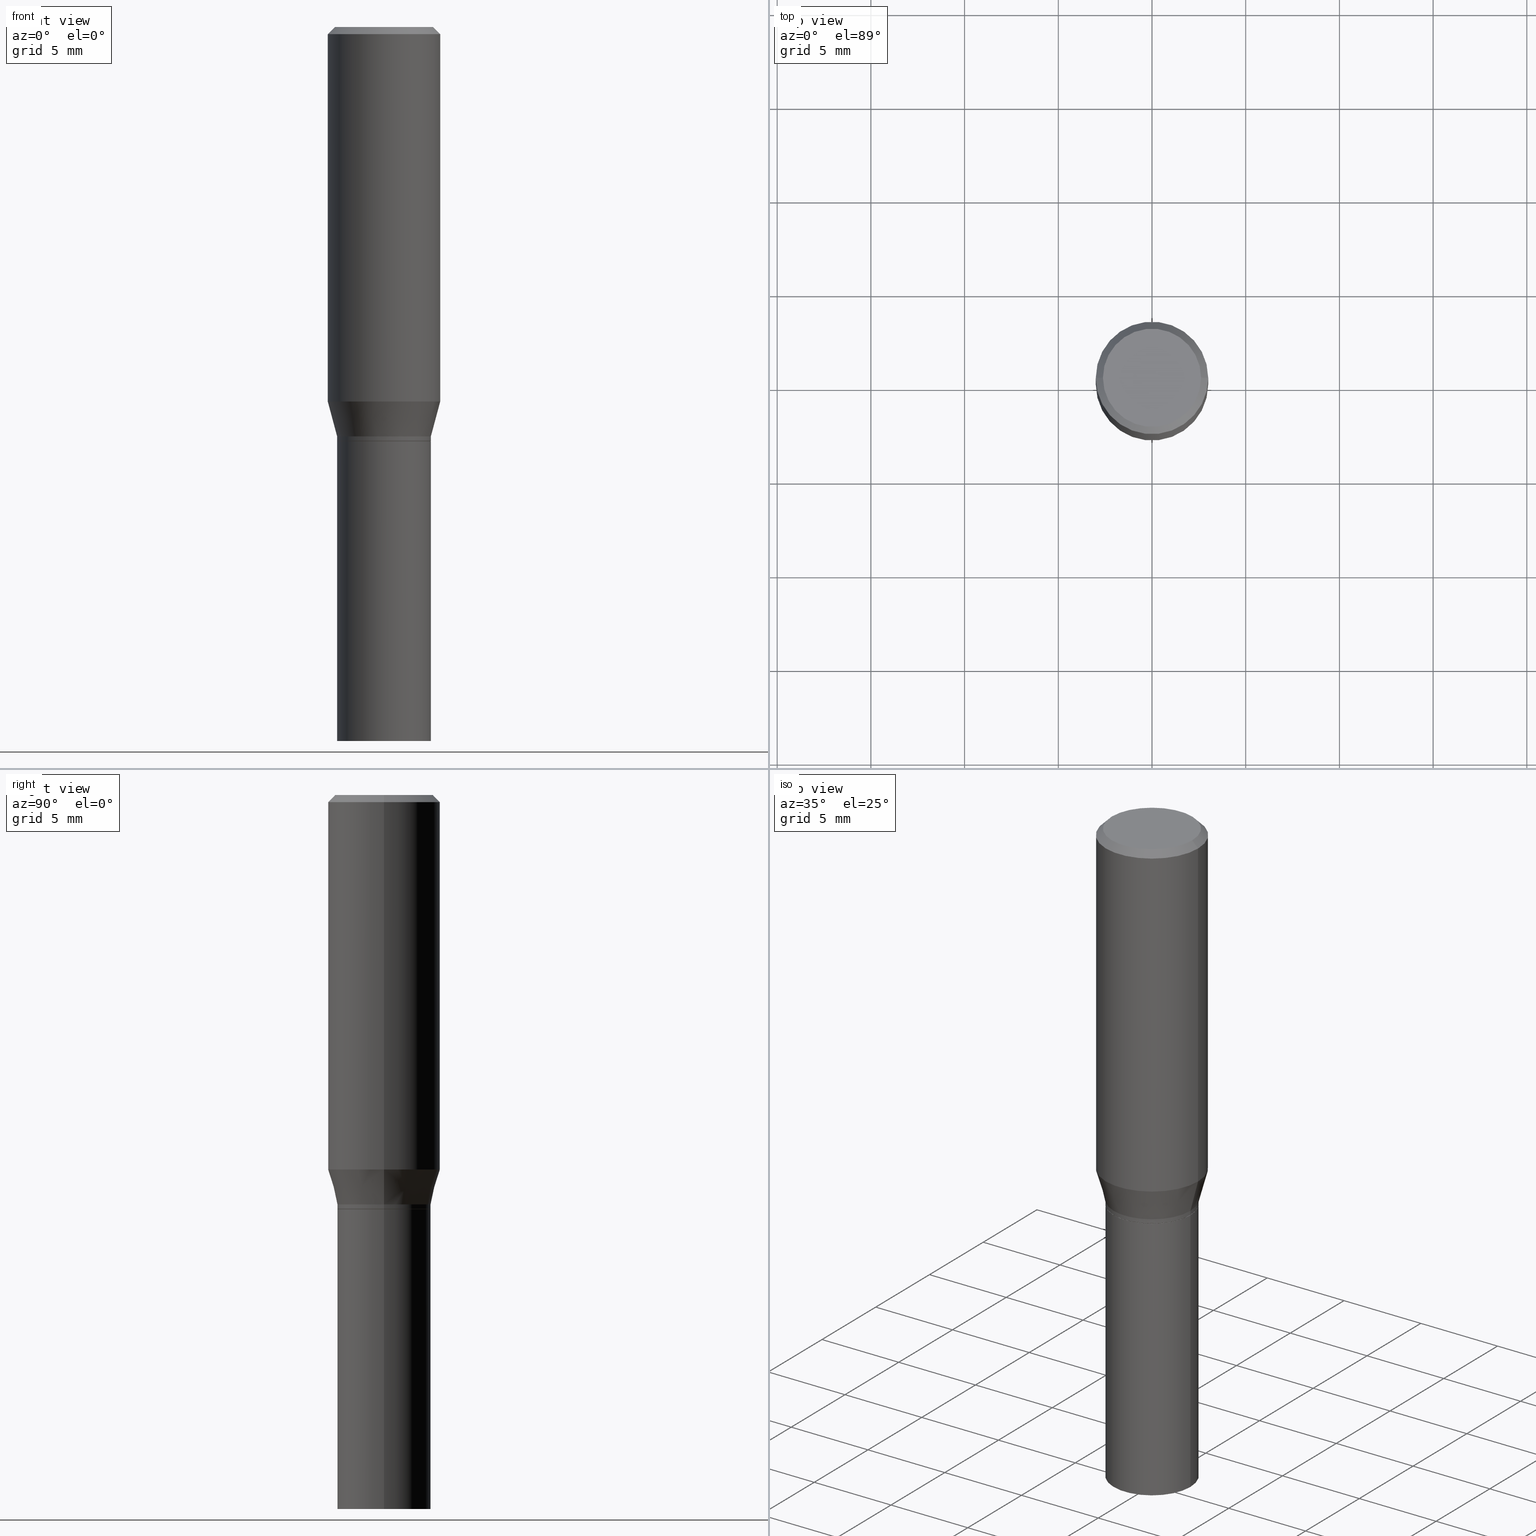
[diagram: canonical four-view strip — front | top / right | iso, engineering-drawing reading convention]
A machine part, canonical four-view strip (front | top / right | iso — engineering-drawing reading convention). The complete STEP part file that produces these views, byte-faithful:
ISO-10303-21;
HEADER;
FILE_DESCRIPTION (( 'STEP AP203' ),
    '1' );
FILE_NAME ('40537.STEP',
    '2024-03-12T19:14:04',
    ( '' ),
    ( '' ),
    'SwSTEP 2.0',
    'SolidWorks 2023',
    '' );
FILE_SCHEMA (( 'CONFIG_CONTROL_DESIGN' ));
ENDSEC;

DATA;
#1 = VERTEX_POINT ( 'NONE', #135 ) ;
#2 = VERTEX_POINT ( 'NONE', #284 ) ;
#3 = AXIS2_PLACEMENT_3D ( 'NONE', #43, #74, #222 ) ;
#4 = LINE ( 'NONE', #142, #16 ) ;
#5 = VERTEX_POINT ( 'NONE', #426 ) ;
#6 = FACE_OUTER_BOUND ( 'NONE', #102, .T. ) ;
#7 = PERSON_AND_ORGANIZATION ( #271, #303 ) ;
#8 = CARTESIAN_POINT ( 'NONE',  ( 3.668203209277705088E-31, -5.237222008264718399E-17, -0.01499999999999999944 ) ) ;
#9 = AXIS2_PLACEMENT_3D ( 'NONE', #419, #382, #313 ) ;
#10 = CIRCLE ( 'NONE', #105, 0.09794999999999999540 ) ;
#11 = DIRECTION ( 'NONE',  ( -2.445468806185136597E-29, 3.491481338843145583E-15, 1.000000000000000000 ) ) ;
#12 = DIRECTION ( 'NONE',  ( -2.445468806185136597E-29, 3.491481338843145583E-15, 1.000000000000000000 ) ) ;
#13 = ORIENTED_EDGE ( 'NONE', *, *, #247, .T. ) ;
#14 = CARTESIAN_POINT ( 'NONE',  ( -0.09844999999999999585, -3.438050637240251581E-15, -1.500000000000000222 ) ) ;
#15 = VERTEX_POINT ( 'NONE', #115 ) ;
#16 = VECTOR ( 'NONE', #295, 39.37007874015748854 ) ;
#17 = FACE_OUTER_BOUND ( 'NONE', #118, .T. ) ;
#18 = LOCAL_TIME ( 15, 14, 4.000000000000000000, #444 ) ;
#19 = DIRECTION ( 'NONE',  ( 1.000000000000000000, -6.982962677686265133E-15, 0.000000000000000000 ) ) ;
#20 = CARTESIAN_POINT ( 'NONE',  ( 0.1031000000000000111, -7.849571885948552706E-16, -1.900413116462238423E-16 ) ) ;
#21 = EDGE_CURVE ( 'NONE', #366, #246, #64, .T. ) ;
#22 = MECHANICAL_CONTEXT ( 'NONE', #73, 'mechanical' ) ;
#23 = DIRECTION ( 'NONE',  ( 1.000000000000000000, -6.982962677686265133E-15, 0.000000000000000000 ) ) ;
#24 = VECTOR ( 'NONE', #139, 39.37007874015748143 ) ;
#25 = EDGE_CURVE ( 'NONE', #168, #5, #400, .T. ) ;
#26 = DIRECTION ( 'NONE',  ( -2.438088387897960049E-29, 3.491481338843145188E-15, 1.000000000000000000 ) ) ;
#27 = CYLINDRICAL_SURFACE ( 'NONE', #416, 0.09844999999999999585 ) ;
#28 = DIRECTION ( 'NONE',  ( -2.438088387897960049E-29, 3.491481338843145188E-15, 1.000000000000000000 ) ) ;
#29 = APPROVAL_DATE_TIME ( #363, #281 ) ;
#30 = VECTOR ( 'NONE', #396, 39.37007874015748143 ) ;
#31 = APPROVAL_PERSON_ORGANIZATION ( #243, #281, #358 ) ;
#32 = DIRECTION ( 'NONE',  ( 1.000000000000000000, -6.982962677686267499E-15, 0.000000000000000000 ) ) ;
#33 = EDGE_LOOP ( 'NONE', ( #435, #183, #367, #395 ) ) ;
#34 = PERSON_AND_ORGANIZATION ( #271, #303 ) ;
#35 = ADVANCED_FACE ( 'NONE', ( #6 ), #152, .F. ) ;
#36 = PLANE ( 'NONE',  #302 ) ;
#37 = EDGE_LOOP ( 'NONE', ( #128, #173 ) ) ;
#38 = PLANE ( 'NONE',  #253 ) ;
#39 = AXIS2_PLACEMENT_3D ( 'NONE', #190, #12, #405 ) ;
#40 = EDGE_LOOP ( 'NONE', ( #287, #465 ) ) ;
#41 = CARTESIAN_POINT ( 'NONE',  ( 1.924009758381236534E-29, -2.746976019546752715E-15, -0.7867652016312725038 ) ) ;
#42 = COORDINATED_UNIVERSAL_TIME_OFFSET ( 5, 0, .BEHIND. ) ;
#43 = CARTESIAN_POINT ( 'NONE',  ( 2.126579673858595013E-29, -3.036192172257999703E-15, -0.8696000000000000396 ) ) ;
#44 = VECTOR ( 'NONE', #427, 39.37007874015748854 ) ;
#45 = LOCAL_TIME ( 15, 14, 4.000000000000000000, #111 ) ;
#46 = CARTESIAN_POINT ( 'NONE',  ( 7.199434520694541042E-16, 0.1031000000000000111, -4.549923818578428559E-16 ) ) ;
#47 = ADVANCED_FACE ( 'NONE', ( #194 ), #375, .T. ) ;
#48 = APPROVAL_ROLE ( '' ) ;
#49 = DIRECTION ( 'NONE',  ( -2.445468806185136597E-29, 3.491481338843145583E-15, 1.000000000000000000 ) ) ;
#50 = AXIS2_PLACEMENT_3D ( 'NONE', #379, #408, #83 ) ;
#51 = DIRECTION ( 'NONE',  ( -2.445468806185136597E-29, 3.491481338843145583E-15, 1.000000000000000000 ) ) ;
#52 = DIRECTION ( 'NONE',  ( 1.000000000000000000, 0.000000000000000000, 0.000000000000000000 ) ) ;
#53 = LINE ( 'NONE', #202, #359 ) ;
#54 = DIRECTION ( 'NONE',  ( 1.000000000000000000, -6.982962677686266711E-15, 4.876176775795936353E-29 ) ) ;
#55 = VERTEX_POINT ( 'NONE', #14 ) ;
#56 = DIRECTION ( 'NONE',  ( -2.445468806185136877E-29, 3.491481338843145188E-15, 1.000000000000000000 ) ) ;
#57 = ORIENTED_EDGE ( 'NONE', *, *, #289, .F. ) ;
#58 = CARTESIAN_POINT ( 'NONE',  ( 0.09845000000000005136, -6.874726756182133489E-16, 4.800596035771100615E-30 ) ) ;
#59 = CARTESIAN_POINT ( 'NONE',  ( 4.647400995173613138E-45, -6.635256932220833331E-31, -1.900413116462290932E-16 ) ) ;
#60 = ORIENTED_EDGE ( 'NONE', *, *, #270, .T. ) ;
#61 = CARTESIAN_POINT ( 'NONE',  ( 0.09794999999999999540, -3.721919107206791548E-15, -0.8701000000000002066 ) ) ;
#62 = DIRECTION ( 'NONE',  ( -2.445468806185136597E-29, 3.491481338843145583E-15, 1.000000000000000000 ) ) ;
#63 = ORIENTED_EDGE ( 'NONE', *, *, #72, .T. ) ;
#64 = CIRCLE ( 'NONE', #311, 0.1180999999999999966 ) ;
#65 = FACE_OUTER_BOUND ( 'NONE', #203, .T. ) ;
#66 = CARTESIAN_POINT ( 'NONE',  ( 0.09844999999999991258, -3.723664847876212263E-15, -0.8696000000000000396 ) ) ;
#67 = EDGE_LOOP ( 'NONE', ( #422, #109, #150, #428 ) ) ;
#68 = CARTESIAN_POINT ( 'NONE',  ( -0.1180999999999999966, -1.907825048614074518E-15, -0.7867652016312725038 ) ) ;
#69 = CARTESIAN_POINT ( 'NONE',  ( 2.103347720199836269E-29, -3.003023099538989951E-15, -0.8601000000000000867 ) ) ;
#70 = EDGE_CURVE ( 'NONE', #137, #2, #117, .T. ) ;
#71 = VECTOR ( 'NONE', #257, 39.37007874015748143 ) ;
#72 = EDGE_CURVE ( 'NONE', #15, #366, #338, .T. ) ;
#73 = APPLICATION_CONTEXT ( 'configuration controlled 3d designs of mechanical parts and assemblies' ) ;
#74 = DIRECTION ( 'NONE',  ( -2.445468806185136597E-29, 3.491481338843145583E-15, 1.000000000000000000 ) ) ;
#75 = EDGE_CURVE ( 'NONE', #2, #137, #336, .T. ) ;
#76 = ORIENTED_EDGE ( 'NONE', *, *, #247, .F. ) ;
#77 = DIRECTION ( 'NONE',  ( 1.000000000000000000, -6.982962677686266711E-15, 4.876176775795936353E-29 ) ) ;
#78 = APPROVAL ( #372, 'UNSPECIFIED' ) ;
#79 = VERTEX_POINT ( 'NONE', #304 ) ;
#80 = CARTESIAN_POINT ( 'NONE',  ( 2.127802408261687534E-29, -3.037937912927421601E-15, -0.8701000000000000956 ) ) ;
#81 = ADVANCED_FACE ( 'NONE', ( #378 ), #158, .F. ) ;
#82 = CONICAL_SURFACE ( 'NONE', #438, 0.09794999999999999540, 0.7853981633971921505 ) ;
#83 = DIRECTION ( 'NONE',  ( 1.000000000000000000, -6.982962677686266711E-15, 4.876176775795935232E-29 ) ) ;
#84 = DIRECTION ( 'NONE',  ( -2.445468806185136597E-29, 3.491481338843145583E-15, 1.000000000000000000 ) ) ;
#85 = CARTESIAN_POINT ( 'NONE',  ( 2.126579673858595013E-29, -3.036192172257999703E-15, -0.8696000000000000396 ) ) ;
#86 = FACE_OUTER_BOUND ( 'NONE', #182, .T. ) ;
#87 = DIRECTION ( 'NONE',  ( 1.000000000000000000, -6.982962677686269077E-15, 0.000000000000000000 ) ) ;
#88 = APPROVAL ( #340, 'UNSPECIFIED' ) ;
#89 = AXIS2_PLACEMENT_3D ( 'NONE', #431, #103, #254 ) ;
#90 = DIRECTION ( 'NONE',  ( -1.000000000000000000, 6.982962677686266711E-15, 0.000000000000000000 ) ) ;
#91 = ORIENTED_EDGE ( 'NONE', *, *, #164, .T. ) ;
#92 = ADVANCED_FACE ( 'NONE', ( #341 ), #116, .T. ) ;
#93 = APPROVAL_DATE_TIME ( #130, #88 ) ;
#94 = CARTESIAN_POINT ( 'NONE',  ( 2.127802408261687534E-29, -3.037937912927421601E-15, -0.8701000000000000956 ) ) ;
#95 = CONICAL_SURFACE ( 'NONE', #104, 0.1180999999999999966, 0.7853981633974543852 ) ;
#96 = CARTESIAN_POINT ( 'NONE',  ( 3.668203209277704895E-29, -5.237222008264718177E-15, -1.500000000000000222 ) ) ;
#97 = APPLICATION_PROTOCOL_DEFINITION ( 'international standard', 'config_control_design', 1994, #368 ) ;
#98 = LINE ( 'NONE', #176, #24 ) ;
#99 = ADVANCED_FACE ( 'NONE', ( #225 ), #443, .T. ) ;
#100 = EDGE_LOOP ( 'NONE', ( #108, #328, #13, #206 ) ) ;
#101 = CYLINDRICAL_SURFACE ( 'NONE', #308, 0.09844999999999999585 ) ;
#102 = EDGE_LOOP ( 'NONE', ( #143, #133 ) ) ;
#103 = DIRECTION ( 'NONE',  ( 2.445468806185136597E-29, -3.491481338843145583E-15, -1.000000000000000000 ) ) ;
#104 = AXIS2_PLACEMENT_3D ( 'NONE', #273, #165, #90 ) ;
#105 = AXIS2_PLACEMENT_3D ( 'NONE', #459, #414, #269 ) ;
#106 = LINE ( 'NONE', #325, #30 ) ;
#107 = ORIENTED_EDGE ( 'NONE', *, *, #388, .T. ) ;
#108 = ORIENTED_EDGE ( 'NONE', *, *, #233, .F. ) ;
#109 = ORIENTED_EDGE ( 'NONE', *, *, #417, .T. ) ;
#110 = DIRECTION ( 'NONE',  ( 1.000000000000000000, -6.982962677686267499E-15, 0.000000000000000000 ) ) ;
#111 = COORDINATED_UNIVERSAL_TIME_OFFSET ( 5, 0, .BEHIND. ) ;
#112 = CONICAL_SURFACE ( 'NONE', #89, 0.1180999999999999966, 0.7853981633974543852 ) ;
#113 = VECTOR ( 'NONE', #250, 39.37007874015748143 ) ;
#114 = CARTESIAN_POINT ( 'NONE',  ( 6.874726756182340565E-16, 0.09844999999999695661, -0.8701000000000005397 ) ) ;
#115 = CARTESIAN_POINT ( 'NONE',  ( 0.1180999999999999966, -3.571663911781501372E-15, -0.7867652016312725038 ) ) ;
#116 = CYLINDRICAL_SURFACE ( 'NONE', #50, 0.09845000000000005136 ) ;
#117 = CIRCLE ( 'NONE', #39, 0.09844999999999999585 ) ;
#118 = EDGE_LOOP ( 'NONE', ( #399, #146, #334, #76 ) ) ;
#119 = DATE_AND_TIME ( #174, #18 ) ;
#120 = DIRECTION ( 'NONE',  ( 1.000000000000000000, -6.982962677686266711E-15, 4.876176775795936353E-29 ) ) ;
#121 = CARTESIAN_POINT ( 'NONE',  ( 0.000000000000000000, 0.000000000000000000, 0.000000000000000000 ) ) ;
#122 = FACE_OUTER_BOUND ( 'NONE', #321, .T. ) ;
#123 = AXIS2_PLACEMENT_3D ( 'NONE', #410, #227, #151 ) ;
#124 = AXIS2_PLACEMENT_3D ( 'NONE', #121, #381, #52 ) ;
#125 = ADVANCED_FACE ( 'NONE', ( #86 ), #392, .T. ) ;
#126 = EDGE_CURVE ( 'NONE', #246, #366, #384, .T. ) ;
#127 = CARTESIAN_POINT ( 'NONE',  ( 3.668203209277705088E-31, -5.237222008264718399E-17, -0.01499999999999999944 ) ) ;
#128 = ORIENTED_EDGE ( 'NONE', *, *, #159, .T. ) ;
#129 = CIRCLE ( 'NONE', #407, 0.09844999999999999585 ) ;
#130 = DATE_AND_TIME ( #451, #312 ) ;
#131 = LINE ( 'NONE', #283, #132 ) ;
#132 = VECTOR ( 'NONE', #56, 39.37007874015748143 ) ;
#133 = ORIENTED_EDGE ( 'NONE', *, *, #75, .T. ) ;
#134 = CONICAL_SURFACE ( 'NONE', #276, 0.09794999999999999540, 0.7853981633971921505 ) ;
#135 = CARTESIAN_POINT ( 'NONE',  ( -0.09794999999999999540, -2.339312076076292793E-15, -0.8701000000000002066 ) ) ;
#136 = CARTESIAN_POINT ( 'NONE',  ( 0.09794999999999999540, -3.721919107206791548E-15, -0.8701000000000002066 ) ) ;
#137 = VERTEX_POINT ( 'NONE', #350 ) ;
#138 =( NAMED_UNIT ( * ) PLANE_ANGLE_UNIT ( ) SI_UNIT ( $, .RADIAN. ) );
#139 = DIRECTION ( 'NONE',  ( -2.445468806185136877E-29, 3.491481338843145188E-15, 1.000000000000000000 ) ) ;
#140 = DATE_TIME_ROLE ( 'classification_date' ) ;
#141 = ORIENTED_EDGE ( 'NONE', *, *, #159, .F. ) ;
#142 = CARTESIAN_POINT ( 'NONE',  ( -0.1180999999999999966, 7.723156721521009862E-16, -0.01499999999999999944 ) ) ;
#143 = ORIENTED_EDGE ( 'NONE', *, *, #70, .T. ) ;
#144 = CIRCLE ( 'NONE', #196, 0.09845000000000017626 ) ;
#145 = ORIENTED_EDGE ( 'NONE', *, *, #370, .F. ) ;
#146 = ORIENTED_EDGE ( 'NONE', *, *, #233, .T. ) ;
#147 = ADVANCED_FACE ( 'NONE', ( #17 ), #82, .T. ) ;
#148 = ORIENTED_EDGE ( 'NONE', *, *, #72, .F. ) ;
#149 = DATE_AND_TIME ( #333, #192 ) ;
#150 = ORIENTED_EDGE ( 'NONE', *, *, #374, .T. ) ;
#151 = DIRECTION ( 'NONE',  ( 1.000000000000000000, -6.982962677686266711E-15, 4.876176775795935232E-29 ) ) ;
#152 = PLANE ( 'NONE',  #294 ) ;
#153 = AXIS2_PLACEMENT_3D ( 'NONE', #69, #62, #288 ) ;
#154 = CIRCLE ( 'NONE', #442, 0.09844999999999999585 ) ;
#155 = ORIENTED_EDGE ( 'NONE', *, *, #189, .F. ) ;
#156 = PERSON_AND_ORGANIZATION ( #271, #303 ) ;
#157 = DIRECTION ( 'NONE',  ( 1.000000000000000000, -6.982962677686265922E-15, 0.000000000000000000 ) ) ;
#158 = PLANE ( 'NONE',  #223 ) ;
#159 = EDGE_CURVE ( 'NONE', #79, #461, #307, .T. ) ;
#160 = CARTESIAN_POINT ( 'NONE',  ( 0.1180999999999999966, -8.246878922347480654E-16, 5.758764772215000440E-30 ) ) ;
#161 =( NAMED_UNIT ( * ) SI_UNIT ( $, .STERADIAN. ) SOLID_ANGLE_UNIT ( ) );
#162 = ADVANCED_FACE ( 'NONE', ( #122 ), #95, .T. ) ;
#163 = ADVANCED_FACE ( 'NONE', ( #232 ), #230, .T. ) ;
#164 = EDGE_CURVE ( 'NONE', #259, #137, #53, .T. ) ;
#165 = DIRECTION ( 'NONE',  ( 2.445468806185136597E-29, -3.491481338843145583E-15, -1.000000000000000000 ) ) ;
#166 = ORIENTED_EDGE ( 'NONE', *, *, #164, .F. ) ;
#167 = FACE_OUTER_BOUND ( 'NONE', #40, .T. ) ;
#168 = VERTEX_POINT ( 'NONE', #66 ) ;
#169 = EDGE_CURVE ( 'NONE', #277, #398, #106, .T. ) ;
#170 = VECTOR ( 'NONE', #306, 39.37007874015748143 ) ;
#171 = CARTESIAN_POINT ( 'NONE',  ( 0.09845000000000017626, -3.690495775157203695E-15, -0.8601000000000000867 ) ) ;
#172 = CIRCLE ( 'NONE', #199, 0.1180999999999999966 ) ;
#173 = ORIENTED_EDGE ( 'NONE', *, *, #238, .T. ) ;
#174 = CALENDAR_DATE ( 2024, 12, 3 ) ;
#175 = CC_DESIGN_PERSON_AND_ORGANIZATION_ASSIGNMENT ( #436, #290, ( #326 ) ) ;
#176 = CARTESIAN_POINT ( 'NONE',  ( -0.09844999999999999585, 6.995293233558186035E-16, -4.842691596355954042E-30 ) ) ;
#177 = EDGE_LOOP ( 'NONE', ( #234, #188, #386, #452 ) ) ;
#178 = PERSON_AND_ORGANIZATION_ROLE ( 'creator' ) ;
#179 = CARTESIAN_POINT ( 'NONE',  ( 0.000000000000000000, 0.000000000000000000, 0.000000000000000000 ) ) ;
#180 = EDGE_CURVE ( 'NONE', #218, #15, #205, .T. ) ;
#181 = DIRECTION ( 'NONE',  ( 1.000000000000000000, -6.982962677686265133E-15, 0.000000000000000000 ) ) ;
#182 = EDGE_LOOP ( 'NONE', ( #155, #213, #63, #332 ) ) ;
#183 = ORIENTED_EDGE ( 'NONE', *, *, #214, .T. ) ;
#184 = EDGE_CURVE ( 'NONE', #79, #246, #4, .T. ) ;
#185 = CARTESIAN_POINT ( 'NONE',  ( 0.1180999999999999966, -8.625970336194650129E-16, -0.01499999999999999944 ) ) ;
#186 = ORIENTED_EDGE ( 'NONE', *, *, #169, .F. ) ;
#187 = AXIS2_PLACEMENT_3D ( 'NONE', #229, #51, #200 ) ;
#188 = ORIENTED_EDGE ( 'NONE', *, *, #169, .T. ) ;
#189 = EDGE_CURVE ( 'NONE', #398, #246, #242, .T. ) ;
#190 = CARTESIAN_POINT ( 'NONE',  ( 2.127802408261687534E-29, -3.037937912927421601E-15, -0.8701000000000000956 ) ) ;
#191 = VECTOR ( 'NONE', #210, 39.37007874015748143 ) ;
#192 = LOCAL_TIME ( 15, 14, 4.000000000000000000, #42 ) ;
#193 = DIRECTION ( 'NONE',  ( 2.438088387897960049E-29, -3.491481338843145188E-15, -1.000000000000000000 ) ) ;
#194 = FACE_OUTER_BOUND ( 'NONE', #296, .T. ) ;
#195 = CC_DESIGN_DATE_AND_TIME_ASSIGNMENT ( #119, #267, ( #319 ) ) ;
#196 = AXIS2_PLACEMENT_3D ( 'NONE', #425, #317, #32 ) ;
#197 = DIRECTION ( 'NONE',  ( -2.445468806185136597E-29, 3.491481338843145583E-15, 1.000000000000000000 ) ) ;
#198 =( GEOMETRIC_REPRESENTATION_CONTEXT ( 3 ) GLOBAL_UNCERTAINTY_ASSIGNED_CONTEXT ( ( #251 ) ) GLOBAL_UNIT_ASSIGNED_CONTEXT ( ( #383, #138, #161 ) ) REPRESENTATION_CONTEXT ( 'NONE', 'WORKASPACE' ) );
#199 = AXIS2_PLACEMENT_3D ( 'NONE', #41, #305, #87 ) ;
#200 = DIRECTION ( 'NONE',  ( 1.000000000000000000, -6.982962677686265922E-15, 4.883331232093008327E-29 ) ) ;
#201 = CARTESIAN_POINT ( 'NONE',  ( 2.127802408261687814E-29, -3.037937912927421995E-15, -0.8701000000000002066 ) ) ;
#202 = CARTESIAN_POINT ( 'NONE',  ( 0.09844999999999999585, -6.874726756182129545E-16, 4.800596035771099214E-30 ) ) ;
#203 = EDGE_LOOP ( 'NONE', ( #413, #107, #91, #323 ) ) ;
#204 = ADVANCED_FACE ( 'NONE', ( #390 ), #38, .F. ) ;
#205 = LINE ( 'NONE', #365, #191 ) ;
#206 = ORIENTED_EDGE ( 'NONE', *, *, #417, .F. ) ;
#207 = DIRECTION ( 'NONE',  ( -2.445468806185136597E-29, 3.491481338843145583E-15, 1.000000000000000000 ) ) ;
#208 = CARTESIAN_POINT ( 'NONE',  ( 0.000000000000000000, 0.000000000000000000, 0.000000000000000000 ) ) ;
#209 = ORIENTED_EDGE ( 'NONE', *, *, #180, .T. ) ;
#210 = DIRECTION ( 'NONE',  ( 0.2588190451025215166, 1.565188264969620784E-15, 0.9659258262890679791 ) ) ;
#211 = CALENDAR_DATE ( 2024, 12, 3 ) ;
#212 = DIRECTION ( 'NONE',  ( -2.445468806185136597E-29, 3.491481338843145583E-15, 1.000000000000000000 ) ) ;
#213 = ORIENTED_EDGE ( 'NONE', *, *, #370, .T. ) ;
#214 = EDGE_CURVE ( 'NONE', #461, #366, #421, .T. ) ;
#215 = DIRECTION ( 'NONE',  ( -2.445468806185136597E-29, 3.491481338843145583E-15, 1.000000000000000000 ) ) ;
#216 = PERSON_AND_ORGANIZATION ( #271, #303 ) ;
#217 = CLOSED_SHELL ( 'NONE', ( #424, #204, #404, #35 ) ) ;
#218 = VERTEX_POINT ( 'NONE', #171 ) ;
#219 = ADVANCED_FACE ( 'NONE', ( #167 ), #36, .F. ) ;
#220 = ORIENTED_EDGE ( 'NONE', *, *, #21, .F. ) ;
#221 = DIRECTION ( 'NONE',  ( -2.445468806185136597E-29, 3.491481338843145583E-15, 1.000000000000000000 ) ) ;
#222 = DIRECTION ( 'NONE',  ( 1.000000000000000000, -6.982962677686266711E-15, 0.000000000000000000 ) ) ;
#223 = AXIS2_PLACEMENT_3D ( 'NONE', #46, #193, #441 ) ;
#224 = AXIS2_PLACEMENT_3D ( 'NONE', #85, #49, #235 ) ;
#225 = FACE_OUTER_BOUND ( 'NONE', #280, .T. ) ;
#226 = CARTESIAN_POINT ( 'NONE',  ( 0.000000000000000000, 0.000000000000000000, 0.000000000000000000 ) ) ;
#227 = DIRECTION ( 'NONE',  ( -2.445468806185136597E-29, 3.491481338843145583E-15, 1.000000000000000000 ) ) ;
#228 = FACE_OUTER_BOUND ( 'NONE', #249, .T. ) ;
#229 = CARTESIAN_POINT ( 'NONE',  ( 4.647400995173613138E-45, -6.635256932220833331E-31, -1.900413116462290932E-16 ) ) ;
#230 = CONICAL_SURFACE ( 'NONE', #9, 0.09845000000000017626, 0.2617993877991502405 ) ;
#231 = CC_DESIGN_PERSON_AND_ORGANIZATION_ASSIGNMENT ( #34, #178, ( #319 ) ) ;
#232 = FACE_OUTER_BOUND ( 'NONE', #177, .T. ) ;
#233 = EDGE_CURVE ( 'NONE', #1, #5, #369, .T. ) ;
#234 = ORIENTED_EDGE ( 'NONE', *, *, #272, .T. ) ;
#235 = DIRECTION ( 'NONE',  ( 1.000000000000000000, -6.982962677686266711E-15, 0.000000000000000000 ) ) ;
#236 = SHAPE_DEFINITION_REPRESENTATION ( #252, #248 ) ;
#237 = DIMENSIONAL_EXPONENTS ( 1.000000000000000000, 0.000000000000000000, 0.000000000000000000, 0.000000000000000000, 0.000000000000000000, 0.000000000000000000, 0.000000000000000000 ) ;
#238 = EDGE_CURVE ( 'NONE', #461, #79, #351, .T. ) ;
#239 = AXIS2_PLACEMENT_3D ( 'NONE', #262, #84, #406 ) ;
#240 = CC_DESIGN_APPROVAL ( #281, ( #319 ) ) ;
#241 = CARTESIAN_POINT ( 'NONE',  ( -0.09794999999999999540, -2.341961303250403994E-15, -0.8701000000000002066 ) ) ;
#242 = LINE ( 'NONE', #353, #282 ) ;
#243 = PERSON_AND_ORGANIZATION ( #271, #303 ) ;
#244 = ORIENTED_EDGE ( 'NONE', *, *, #374, .F. ) ;
#245 = FACE_OUTER_BOUND ( 'NONE', #265, .T. ) ;
#246 = VERTEX_POINT ( 'NONE', #460 ) ;
#247 = EDGE_CURVE ( 'NONE', #432, #168, #362, .T. ) ;
#248 = ADVANCED_BREP_SHAPE_REPRESENTATION ( '40537', ( #309, #450, #124 ), #198 ) ;
#249 = EDGE_LOOP ( 'NONE', ( #291, #397, #364, #166 ) ) ;
#250 = DIRECTION ( 'NONE',  ( -2.445468806185136877E-29, 3.491481338843145188E-15, 1.000000000000000000 ) ) ;
#251 = UNCERTAINTY_MEASURE_WITH_UNIT (LENGTH_MEASURE( 1.000000000000000082E-05 ), #383, 'distance_accuracy_value', 'NONE');
#252 = PRODUCT_DEFINITION_SHAPE ( 'NONE', 'NONE',  #319 ) ;
#253 = AXIS2_PLACEMENT_3D ( 'NONE', #464, #26, #279 ) ;
#254 = DIRECTION ( 'NONE',  ( -1.000000000000000000, 6.982962677686266711E-15, 0.000000000000000000 ) ) ;
#255 = CC_DESIGN_APPROVAL ( #78, ( #393 ) ) ;
#256 = ORIENTED_EDGE ( 'NONE', *, *, #25, .T. ) ;
#257 = DIRECTION ( 'NONE',  ( -0.7071067811863663843, 7.493145998869699406E-15, 0.7071067811867286501 ) ) ;
#258 = ORIENTED_EDGE ( 'NONE', *, *, #126, .T. ) ;
#259 = VERTEX_POINT ( 'NONE', #385 ) ;
#260 = AXIS2_PLACEMENT_3D ( 'NONE', #322, #215, #110 ) ;
#261 = DATE_AND_TIME ( #403, #45 ) ;
#262 = CARTESIAN_POINT ( 'NONE',  ( 0.000000000000000000, 0.000000000000000000, 0.000000000000000000 ) ) ;
#263 = DIRECTION ( 'NONE',  ( -2.445468806185136597E-29, 3.491481338843145583E-15, 1.000000000000000000 ) ) ;
#264 = DIRECTION ( 'NONE',  ( 1.000000000000000000, -6.982962677686266711E-15, 0.000000000000000000 ) ) ;
#265 = EDGE_LOOP ( 'NONE', ( #186, #301, #209, #145 ) ) ;
#266 = CONICAL_SURFACE ( 'NONE', #153, 0.09845000000000017626, 0.2617993877991502405 ) ;
#267 = DATE_TIME_ROLE ( 'creation_date' ) ;
#268 = CARTESIAN_POINT ( 'NONE',  ( 2.127802408261687814E-29, -3.037937912927421995E-15, -0.8701000000000002066 ) ) ;
#269 = DIRECTION ( 'NONE',  ( 1.000000000000000000, -6.982962677686265133E-15, 0.000000000000000000 ) ) ;
#270 = EDGE_CURVE ( 'NONE', #5, #277, #131, .T. ) ;
#271 = PERSON ( 'UNSPECIFIED', 'UNSPECIFIED', 'UNSPECIFIED', ('UNSPECIFIED'), ('UNSPECIFIED'), ('UNSPECIFIED') ) ;
#272 = EDGE_CURVE ( 'NONE', #218, #277, #144, .T. ) ;
#273 = CARTESIAN_POINT ( 'NONE',  ( 3.668203209277705088E-31, -5.237222008264718399E-17, -0.01499999999999999944 ) ) ;
#274 = PRODUCT ( '40537', '40537', '', ( #22 ) ) ;
#275 = APPLICATION_PROTOCOL_DEFINITION ( 'international standard', 'config_control_design', 1994, #73 ) ;
#276 = AXIS2_PLACEMENT_3D ( 'NONE', #201, #197, #19 ) ;
#277 = VERTEX_POINT ( 'NONE', #286 ) ;
#278 = FACE_OUTER_BOUND ( 'NONE', #100, .T. ) ;
#279 = DIRECTION ( 'NONE',  ( 1.000000000000000000, -6.982962677686265922E-15, 4.876176775795935793E-29 ) ) ;
#280 = EDGE_LOOP ( 'NONE', ( #256, #60, #448, #244 ) ) ;
#281 = APPROVAL ( #389, 'UNSPECIFIED' ) ;
#282 = VECTOR ( 'NONE', #458, 39.37007874015748143 ) ;
#283 = CARTESIAN_POINT ( 'NONE',  ( -0.09845000000000005136, 6.995293233558189979E-16, -4.842691596355956844E-30 ) ) ;
#284 = CARTESIAN_POINT ( 'NONE',  ( -0.09844999999999999585, -3.438050637240251581E-15, -0.8701000000000000956 ) ) ;
#285 = LINE ( 'NONE', #58, #113 ) ;
#286 = CARTESIAN_POINT ( 'NONE',  ( -0.09845000000000017626, -2.105659412398621996E-15, -0.8601000000000000867 ) ) ;
#287 = ORIENTED_EDGE ( 'NONE', *, *, #339, .F. ) ;
#288 = DIRECTION ( 'NONE',  ( 1.000000000000000000, -6.982962677686267499E-15, 0.000000000000000000 ) ) ;
#289 = EDGE_CURVE ( 'NONE', #259, #55, #129, .T. ) ;
#290 = PERSON_AND_ORGANIZATION_ROLE ( 'classification_officer' ) ;
#291 = ORIENTED_EDGE ( 'NONE', *, *, #289, .T. ) ;
#292 = CARTESIAN_POINT ( 'NONE',  ( 1.924009758381236534E-29, -2.746976019546752715E-15, -0.7867652016312725038 ) ) ;
#293 = PRODUCT_RELATED_PRODUCT_CATEGORY ( 'detail', '', ( #274 ) ) ;
#294 = AXIS2_PLACEMENT_3D ( 'NONE', #114, #440, #342 ) ;
#295 = DIRECTION ( 'NONE',  ( -0.7071067811865516806, 2.468850131082300842E-15, -0.7071067811865431318 ) ) ;
#296 = EDGE_LOOP ( 'NONE', ( #391, #445, #220, #148 ) ) ;
#297 = ORIENTED_EDGE ( 'NONE', *, *, #388, .F. ) ;
#298 = ORIENTED_EDGE ( 'NONE', *, *, #214, .F. ) ;
#299 = DIRECTION ( 'NONE',  ( -2.445468806185136597E-29, 3.491481338843145583E-15, 1.000000000000000000 ) ) ;
#300 = PERSON_AND_ORGANIZATION ( #271, #303 ) ;
#301 = ORIENTED_EDGE ( 'NONE', *, *, #345, .T. ) ;
#302 = AXIS2_PLACEMENT_3D ( 'NONE', #94, #28, #315 ) ;
#303 = ORGANIZATION ( 'UNSPECIFIED', 'UNSPECIFIED', '' ) ;
#304 = CARTESIAN_POINT ( 'NONE',  ( -0.1031000000000000111, 7.461295621107772493E-16, -1.900413116462341961E-16 ) ) ;
#305 = DIRECTION ( 'NONE',  ( -2.445468806185136597E-29, 3.491481338843145583E-15, 1.000000000000000000 ) ) ;
#306 = DIRECTION ( 'NONE',  ( -2.445468806185136877E-29, 3.491481338843145188E-15, 1.000000000000000000 ) ) ;
#307 = CIRCLE ( 'NONE', #187, 0.1031000000000000111 ) ;
#308 = AXIS2_PLACEMENT_3D ( 'NONE', #208, #380, #54 ) ;
#309 = MANIFOLD_SOLID_BREP ( 'Body-Move/Copy2[1]', #217 ) ;
#310 = PERSON_AND_ORGANIZATION ( #271, #303 ) ;
#311 = AXIS2_PLACEMENT_3D ( 'NONE', #8, #221, #264 ) ;
#312 = LOCAL_TIME ( 15, 14, 4.000000000000000000, #420 ) ;
#313 = DIRECTION ( 'NONE',  ( 1.000000000000000000, -6.982962677686267499E-15, 0.000000000000000000 ) ) ;
#314 = EDGE_CURVE ( 'NONE', #55, #2, #98, .T. ) ;
#315 = DIRECTION ( 'NONE',  ( 1.000000000000000000, -6.982962677686265922E-15, 4.876176775795935793E-29 ) ) ;
#316 = CIRCLE ( 'NONE', #361, 0.1180999999999999966 ) ;
#317 = DIRECTION ( 'NONE',  ( -2.445468806185136597E-29, 3.491481338843145583E-15, 1.000000000000000000 ) ) ;
#318 = LENGTH_MEASURE_WITH_UNIT ( LENGTH_MEASURE( 0.02539999999999999897 ), #348 );
#319 = PRODUCT_DEFINITION ( 'UNKNOWN', '', #393, #430 ) ;
#320 = FACE_OUTER_BOUND ( 'NONE', #33, .T. ) ;
#321 = EDGE_LOOP ( 'NONE', ( #298, #141, #354, #258 ) ) ;
#322 = CARTESIAN_POINT ( 'NONE',  ( 2.103347720199836269E-29, -3.003023099538989951E-15, -0.8601000000000000867 ) ) ;
#323 = ORIENTED_EDGE ( 'NONE', *, *, #75, .F. ) ;
#324 = APPROVAL_DATE_TIME ( #149, #78 ) ;
#325 = CARTESIAN_POINT ( 'NONE',  ( -0.09845000000000017626, -2.303493776183169474E-15, -0.8601000000000000867 ) ) ;
#326 = SECURITY_CLASSIFICATION ( '', '', #462 ) ;
#327 = ADVANCED_FACE ( 'NONE', ( #245 ), #266, .T. ) ;
#328 = ORIENTED_EDGE ( 'NONE', *, *, #437, .T. ) ;
#329 = CARTESIAN_POINT ( 'NONE',  ( 3.668203209277704895E-29, -5.237222008264718177E-15, -1.500000000000000222 ) ) ;
#330 = CC_DESIGN_PERSON_AND_ORGANIZATION_ASSIGNMENT ( #7, #466, ( #393 ) ) ;
#331 = APPROVAL_ROLE ( '' ) ;
#332 = ORIENTED_EDGE ( 'NONE', *, *, #126, .F. ) ;
#333 = CALENDAR_DATE ( 2024, 12, 3 ) ;
#334 = ORIENTED_EDGE ( 'NONE', *, *, #25, .F. ) ;
#335 = ADVANCED_FACE ( 'NONE', ( #320 ), #112, .T. ) ;
#336 = CIRCLE ( 'NONE', #423, 0.09844999999999999585 ) ;
#337 = LOCAL_TIME ( 15, 14, 4.000000000000000000, #411 ) ;
#338 = LINE ( 'NONE', #160, #170 ) ;
#339 = EDGE_CURVE ( 'NONE', #432, #1, #344, .T. ) ;
#340 = APPROVAL_STATUS ( 'not_yet_approved' ) ;
#341 = FACE_OUTER_BOUND ( 'NONE', #67, .T. ) ;
#342 = DIRECTION ( 'NONE',  ( -1.000000000000000000, 6.982962677686265922E-15, -4.876176775795935793E-29 ) ) ;
#343 = DIRECTION ( 'NONE',  ( 1.000000000000000000, -6.982962677686266711E-15, 0.000000000000000000 ) ) ;
#344 = CIRCLE ( 'NONE', #415, 0.09794999999999999540 ) ;
#345 = EDGE_CURVE ( 'NONE', #277, #218, #456, .T. ) ;
#346 = AXIS2_PLACEMENT_3D ( 'NONE', #59, #434, #387 ) ;
#347 = APPROVAL_PERSON_ORGANIZATION ( #156, #88, #48 ) ;
#348 =( LENGTH_UNIT ( ) NAMED_UNIT ( * ) SI_UNIT ( $, .METRE. ) );
#349 = DIRECTION ( 'NONE',  ( -2.445468806185136877E-29, 3.491481338843145188E-15, 1.000000000000000000 ) ) ;
#350 = CARTESIAN_POINT ( 'NONE',  ( 0.09844999999999999585, -3.725410588545634555E-15, -0.8701000000000000956 ) ) ;
#351 = CIRCLE ( 'NONE', #346, 0.1031000000000000111 ) ;
#352 = CIRCLE ( 'NONE', #224, 0.09844999999999991258 ) ;
#353 = CARTESIAN_POINT ( 'NONE',  ( -0.1180999999999999966, 8.391509709326782957E-16, -5.809262341591043784E-30 ) ) ;
#354 = ORIENTED_EDGE ( 'NONE', *, *, #184, .T. ) ;
#355 = DIRECTION ( 'NONE',  ( 1.000000000000000000, -6.982962677686265922E-15, 0.000000000000000000 ) ) ;
#356 = DIRECTION ( 'NONE',  ( 1.000000000000000000, -6.982962677686265922E-15, 0.000000000000000000 ) ) ;
#357 = EDGE_LOOP ( 'NONE', ( #57, #297 ) ) ;
#358 = APPROVAL_ROLE ( '' ) ;
#359 = VECTOR ( 'NONE', #349, 39.37007874015748143 ) ;
#360 = CARTESIAN_POINT ( 'NONE',  ( 0.1180999999999999966, -8.770601123173952432E-16, -0.01499999999999999944 ) ) ;
#361 = AXIS2_PLACEMENT_3D ( 'NONE', #292, #429, #457 ) ;
#362 = LINE ( 'NONE', #136, #433 ) ;
#363 = DATE_AND_TIME ( #211, #337 ) ;
#364 = ORIENTED_EDGE ( 'NONE', *, *, #70, .F. ) ;
#365 = CARTESIAN_POINT ( 'NONE',  ( 0.09845000000000017626, -3.690495775157203695E-15, -0.8601000000000000867 ) ) ;
#366 = VERTEX_POINT ( 'NONE', #360 ) ;
#367 = ORIENTED_EDGE ( 'NONE', *, *, #21, .T. ) ;
#368 = APPLICATION_CONTEXT ( 'configuration controlled 3d designs of mechanical parts and assemblies' ) ;
#369 = LINE ( 'NONE', #241, #71 ) ;
#370 = EDGE_CURVE ( 'NONE', #398, #15, #316, .T. ) ;
#371 = AXIS2_PLACEMENT_3D ( 'NONE', #179, #446, #120 ) ;
#372 = APPROVAL_STATUS ( 'not_yet_approved' ) ;
#373 = PERSON_AND_ORGANIZATION_ROLE ( 'design_supplier' ) ;
#374 = EDGE_CURVE ( 'NONE', #168, #218, #285, .T. ) ;
#375 = CYLINDRICAL_SURFACE ( 'NONE', #239, 0.1180999999999999966 ) ;
#376 = CLOSED_SHELL ( 'NONE', ( #99, #147, #335, #47, #163, #327, #125, #162, #81, #219, #453, #92 ) ) ;
#377 = CC_DESIGN_SECURITY_CLASSIFICATION ( #326, ( #393 ) ) ;
#378 = FACE_OUTER_BOUND ( 'NONE', #37, .T. ) ;
#379 = CARTESIAN_POINT ( 'NONE',  ( 0.000000000000000000, 0.000000000000000000, 0.000000000000000000 ) ) ;
#380 = DIRECTION ( 'NONE',  ( -2.445468806185136597E-29, 3.491481338843145583E-15, 1.000000000000000000 ) ) ;
#381 = DIRECTION ( 'NONE',  ( 0.000000000000000000, 0.000000000000000000, 1.000000000000000000 ) ) ;
#382 = DIRECTION ( 'NONE',  ( -2.445468806185136597E-29, 3.491481338843145583E-15, 1.000000000000000000 ) ) ;
#383 =( CONVERSION_BASED_UNIT ( 'INCH', #318 ) LENGTH_UNIT ( ) NAMED_UNIT ( #237 ) );
#384 = CIRCLE ( 'NONE', #447, 0.1180999999999999966 ) ;
#385 = CARTESIAN_POINT ( 'NONE',  ( 0.09844999999999999585, -5.924694683882931526E-15, -1.500000000000000222 ) ) ;
#386 = ORIENTED_EDGE ( 'NONE', *, *, #409, .F. ) ;
#387 = DIRECTION ( 'NONE',  ( 1.000000000000000000, -6.982962677686265922E-15, 4.883331232093008327E-29 ) ) ;
#388 = EDGE_CURVE ( 'NONE', #55, #259, #154, .T. ) ;
#389 = APPROVAL_STATUS ( 'not_yet_approved' ) ;
#390 = FACE_OUTER_BOUND ( 'NONE', #357, .T. ) ;
#391 = ORIENTED_EDGE ( 'NONE', *, *, #409, .T. ) ;
#392 = CYLINDRICAL_SURFACE ( 'NONE', #371, 0.1180999999999999966 ) ;
#393 = PRODUCT_DEFINITION_FORMATION_WITH_SPECIFIED_SOURCE ( 'ANY', '', #274, .NOT_KNOWN. ) ;
#394 = CARTESIAN_POINT ( 'NONE',  ( 2.127802408261687814E-29, -3.037937912927421995E-15, -0.8701000000000002066 ) ) ;
#395 = ORIENTED_EDGE ( 'NONE', *, *, #184, .F. ) ;
#396 = DIRECTION ( 'NONE',  ( -0.2588190451025215166, 5.211531920934551042E-15, 0.9659258262890679791 ) ) ;
#397 = ORIENTED_EDGE ( 'NONE', *, *, #314, .T. ) ;
#398 = VERTEX_POINT ( 'NONE', #68 ) ;
#399 = ORIENTED_EDGE ( 'NONE', *, *, #339, .T. ) ;
#400 = CIRCLE ( 'NONE', #3, 0.09844999999999991258 ) ;
#401 = CC_DESIGN_APPROVAL ( #88, ( #326 ) ) ;
#402 = CC_DESIGN_PERSON_AND_ORGANIZATION_ASSIGNMENT ( #310, #418, ( #274 ) ) ;
#403 = CALENDAR_DATE ( 2024, 12, 3 ) ;
#404 = ADVANCED_FACE ( 'NONE', ( #65 ), #27, .T. ) ;
#405 = DIRECTION ( 'NONE',  ( 1.000000000000000000, -6.982962677686265922E-15, 0.000000000000000000 ) ) ;
#406 = DIRECTION ( 'NONE',  ( 1.000000000000000000, -6.982962677686266711E-15, 4.876176775795936353E-29 ) ) ;
#407 = AXIS2_PLACEMENT_3D ( 'NONE', #96, #207, #356 ) ;
#408 = DIRECTION ( 'NONE',  ( -2.445468806185136597E-29, 3.491481338843145583E-15, 1.000000000000000000 ) ) ;
#409 = EDGE_CURVE ( 'NONE', #15, #398, #172, .T. ) ;
#410 = CARTESIAN_POINT ( 'NONE',  ( 0.000000000000000000, 0.000000000000000000, 0.000000000000000000 ) ) ;
#411 = COORDINATED_UNIVERSAL_TIME_OFFSET ( 5, 0, .BEHIND. ) ;
#412 = DIRECTION ( 'NONE',  ( -2.445468806185136597E-29, 3.491481338843145583E-15, 1.000000000000000000 ) ) ;
#413 = ORIENTED_EDGE ( 'NONE', *, *, #314, .F. ) ;
#414 = DIRECTION ( 'NONE',  ( -2.445468806185136597E-29, 3.491481338843145583E-15, 1.000000000000000000 ) ) ;
#415 = AXIS2_PLACEMENT_3D ( 'NONE', #394, #212, #181 ) ;
#416 = AXIS2_PLACEMENT_3D ( 'NONE', #226, #263, #77 ) ;
#417 = EDGE_CURVE ( 'NONE', #5, #168, #352, .T. ) ;
#418 = PERSON_AND_ORGANIZATION_ROLE ( 'design_owner' ) ;
#419 = CARTESIAN_POINT ( 'NONE',  ( 2.103347720199836269E-29, -3.003023099538989951E-15, -0.8601000000000000867 ) ) ;
#420 = COORDINATED_UNIVERSAL_TIME_OFFSET ( 5, 0, .BEHIND. ) ;
#421 = LINE ( 'NONE', #185, #44 ) ;
#422 = ORIENTED_EDGE ( 'NONE', *, *, #270, .F. ) ;
#423 = AXIS2_PLACEMENT_3D ( 'NONE', #80, #11, #157 ) ;
#424 = ADVANCED_FACE ( 'NONE', ( #228 ), #101, .T. ) ;
#425 = CARTESIAN_POINT ( 'NONE',  ( 2.103347720199836269E-29, -3.003023099538989951E-15, -0.8601000000000000867 ) ) ;
#426 = CARTESIAN_POINT ( 'NONE',  ( -0.09844999999999991258, -2.336662848902181986E-15, -0.8696000000000000396 ) ) ;
#427 = DIRECTION ( 'NONE',  ( 0.7071067811865516806, -7.319954787623268667E-15, -0.7071067811865431318 ) ) ;
#428 = ORIENTED_EDGE ( 'NONE', *, *, #345, .F. ) ;
#429 = DIRECTION ( 'NONE',  ( -2.445468806185136597E-29, 3.491481338843145583E-15, 1.000000000000000000 ) ) ;
#430 = DESIGN_CONTEXT ( 'detailed design', #368, 'design' ) ;
#431 = CARTESIAN_POINT ( 'NONE',  ( 3.668203209277705088E-31, -5.237222008264718399E-17, -0.01499999999999999944 ) ) ;
#432 = VERTEX_POINT ( 'NONE', #61 ) ;
#433 = VECTOR ( 'NONE', #454, 39.37007874015748143 ) ;
#434 = DIRECTION ( 'NONE',  ( -2.445468806185136597E-29, 3.491481338843145583E-15, 1.000000000000000000 ) ) ;
#435 = ORIENTED_EDGE ( 'NONE', *, *, #238, .F. ) ;
#436 = PERSON_AND_ORGANIZATION ( #271, #303 ) ;
#437 = EDGE_CURVE ( 'NONE', #1, #432, #10, .T. ) ;
#438 = AXIS2_PLACEMENT_3D ( 'NONE', #268, #412, #23 ) ;
#439 = APPROVAL_PERSON_ORGANIZATION ( #216, #78, #331 ) ;
#440 = DIRECTION ( 'NONE',  ( 2.438088387897960049E-29, -3.491481338843145188E-15, -1.000000000000000000 ) ) ;
#441 = DIRECTION ( 'NONE',  ( -1.000000000000000000, 6.982962677686265922E-15, -4.876176775795935793E-29 ) ) ;
#442 = AXIS2_PLACEMENT_3D ( 'NONE', #329, #299, #355 ) ;
#443 = CYLINDRICAL_SURFACE ( 'NONE', #123, 0.09845000000000005136 ) ;
#444 = COORDINATED_UNIVERSAL_TIME_OFFSET ( 5, 0, .BEHIND. ) ;
#445 = ORIENTED_EDGE ( 'NONE', *, *, #189, .T. ) ;
#446 = DIRECTION ( 'NONE',  ( -2.445468806185136597E-29, 3.491481338843145583E-15, 1.000000000000000000 ) ) ;
#447 = AXIS2_PLACEMENT_3D ( 'NONE', #127, #449, #343 ) ;
#448 = ORIENTED_EDGE ( 'NONE', *, *, #272, .F. ) ;
#449 = DIRECTION ( 'NONE',  ( -2.445468806185136597E-29, 3.491481338843145583E-15, 1.000000000000000000 ) ) ;
#450 = MANIFOLD_SOLID_BREP ( 'Body-Move/Copy2[2]', #376 ) ;
#451 = CALENDAR_DATE ( 2024, 12, 3 ) ;
#452 = ORIENTED_EDGE ( 'NONE', *, *, #180, .F. ) ;
#453 = ADVANCED_FACE ( 'NONE', ( #278 ), #134, .T. ) ;
#454 = DIRECTION ( 'NONE',  ( 0.7071067811863663843, -2.468850131080359456E-15, 0.7071067811867286501 ) ) ;
#455 = CC_DESIGN_DATE_AND_TIME_ASSIGNMENT ( #261, #140, ( #326 ) ) ;
#456 = CIRCLE ( 'NONE', #260, 0.09845000000000017626 ) ;
#457 = DIRECTION ( 'NONE',  ( 1.000000000000000000, -6.982962677686269077E-15, 0.000000000000000000 ) ) ;
#458 = DIRECTION ( 'NONE',  ( -2.445468806185136877E-29, 3.491481338843145188E-15, 1.000000000000000000 ) ) ;
#459 = CARTESIAN_POINT ( 'NONE',  ( 2.127802408261687814E-29, -3.037937912927421995E-15, -0.8701000000000002066 ) ) ;
#460 = CARTESIAN_POINT ( 'NONE',  ( -0.1180999999999999966, -5.605231488820216014E-16, -0.01499999999999999944 ) ) ;
#461 = VERTEX_POINT ( 'NONE', #20 ) ;
#462 = SECURITY_CLASSIFICATION_LEVEL ( 'unclassified' ) ;
#463 = CC_DESIGN_PERSON_AND_ORGANIZATION_ASSIGNMENT ( #300, #373, ( #393 ) ) ;
#464 = CARTESIAN_POINT ( 'NONE',  ( 3.576687321579069994E-29, -5.368277968210015545E-15, -1.500000000000000222 ) ) ;
#465 = ORIENTED_EDGE ( 'NONE', *, *, #437, .F. ) ;
#466 = PERSON_AND_ORGANIZATION_ROLE ( 'creator' ) ;
ENDSEC;
END-ISO-10303-21;
